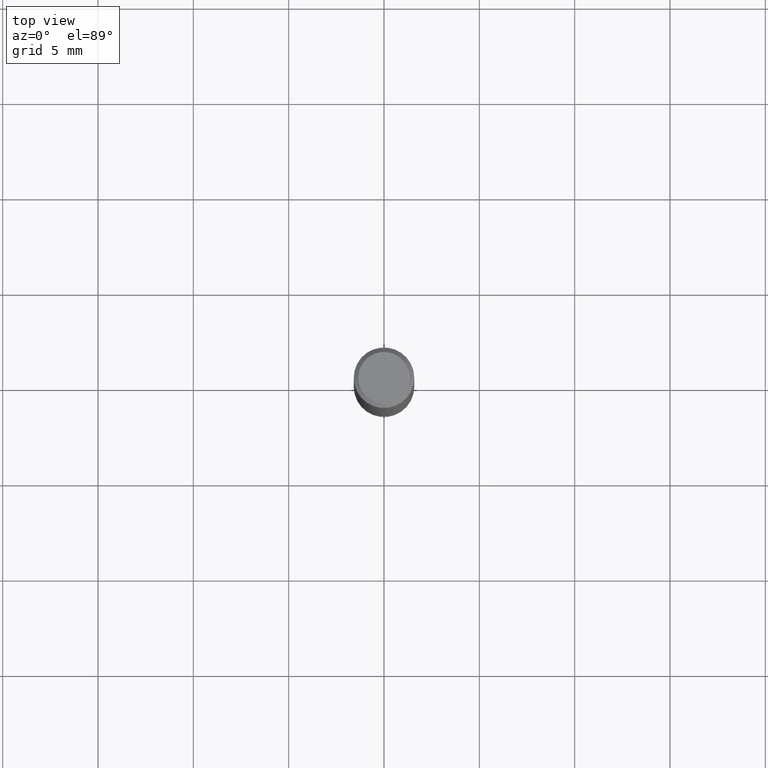
[diagram: clean part render]
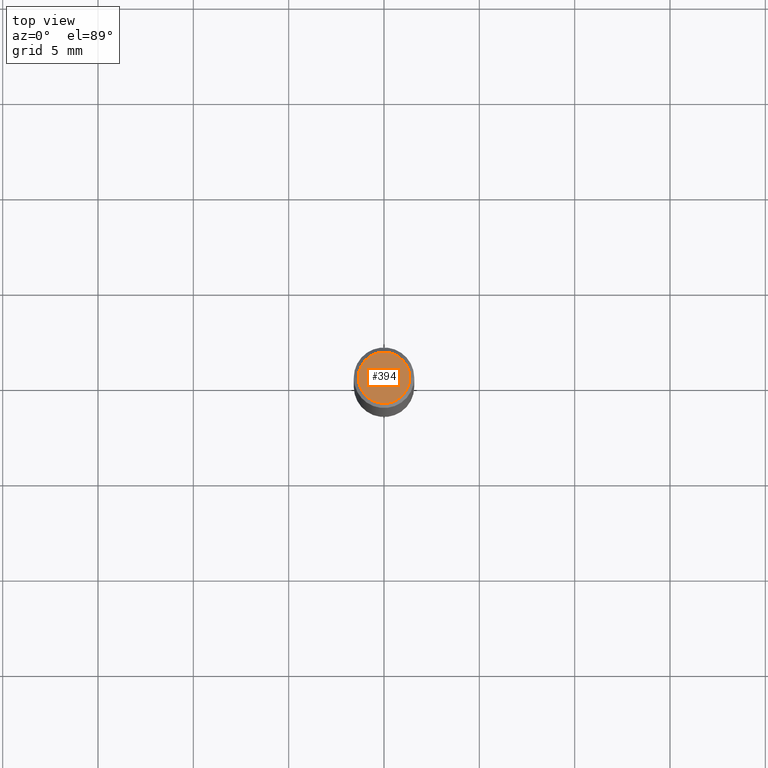
[diagram: same view with one face highlighted and labeled with its STEP entity id]
A machine part, top view. The second image highlights one B-rep face of the part: STEP entity #394.
In plain terms, the highlighted planar face has unit normal (0, -0, -1).
Its self-contained STEP definition (entity closure, byte-faithful):
#17 = EDGE_LOOP ( 'NONE', ( #189, #75 ) ) ;
#72 = AXIS2_PLACEMENT_3D ( 'NONE', #212, #479, #558 ) ;
#75 = ORIENTED_EDGE ( 'NONE', *, *, #139, .T. ) ;
#81 = DIRECTION ( 'NONE',  ( 1.000000000000000000, -6.982962677686266711E-15, 4.875930095424100059E-29 ) ) ;
#85 = DIRECTION ( 'NONE',  ( -2.445468806185136597E-29, 3.491481338843145583E-15, 1.000000000000000000 ) ) ;
#86 = VERTEX_POINT ( 'NONE', #116 ) ;
#116 = CARTESIAN_POINT ( 'NONE',  ( 0.05312499999999999861, -4.129888592719939842E-16, -5.787680772767651417E-18 ) ) ;
#139 = EDGE_CURVE ( 'NONE', #86, #159, #523, .T. ) ;
#148 = FACE_OUTER_BOUND ( 'NONE', #17, .T. ) ;
#159 = VERTEX_POINT ( 'NONE', #384 ) ;
#189 = ORIENTED_EDGE ( 'NONE', *, *, #213, .T. ) ;
#197 = CARTESIAN_POINT ( 'NONE',  ( 7.076796394983739835E-47, -1.010378970665454992E-32, -2.893840386385196200E-18 ) ) ;
#212 = CARTESIAN_POINT ( 'NONE',  ( 1.415359278996747967E-46, -2.020757941330909984E-32, -5.787680772770392401E-18 ) ) ;
#213 = EDGE_CURVE ( 'NONE', #159, #86, #237, .T. ) ;
#237 = CIRCLE ( 'NONE', #325, 0.05312499999999999861 ) ;
#325 = AXIS2_PLACEMENT_3D ( 'NONE', #452, #85, #81 ) ;
#331 = DIRECTION ( 'NONE',  ( -1.000000000000000000, 6.982962677686265922E-15, -4.876176775795935793E-29 ) ) ;
#376 = DIRECTION ( 'NONE',  ( 2.438088387897960049E-29, -3.491481338843145188E-15, -1.000000000000000000 ) ) ;
#384 = CARTESIAN_POINT ( 'NONE',  ( -0.05312499999999999861, 3.873362110279099094E-16, -5.787680772773044021E-18 ) ) ;
#394 = ADVANCED_FACE ( 'NONE', ( #148 ), #421, .F. ) ;
#421 = PLANE ( 'NONE',  #466 ) ;
#452 = CARTESIAN_POINT ( 'NONE',  ( 1.415359278996747967E-46, -2.020757941330909984E-32, -5.787680772770392401E-18 ) ) ;
#466 = AXIS2_PLACEMENT_3D ( 'NONE', #197, #376, #331 ) ;
#479 = DIRECTION ( 'NONE',  ( -2.445468806185136597E-29, 3.491481338843145583E-15, 1.000000000000000000 ) ) ;
#523 = CIRCLE ( 'NONE', #72, 0.05312499999999999861 ) ;
#558 = DIRECTION ( 'NONE',  ( 1.000000000000000000, -6.982962677686266711E-15, 4.875930095424100059E-29 ) ) ;